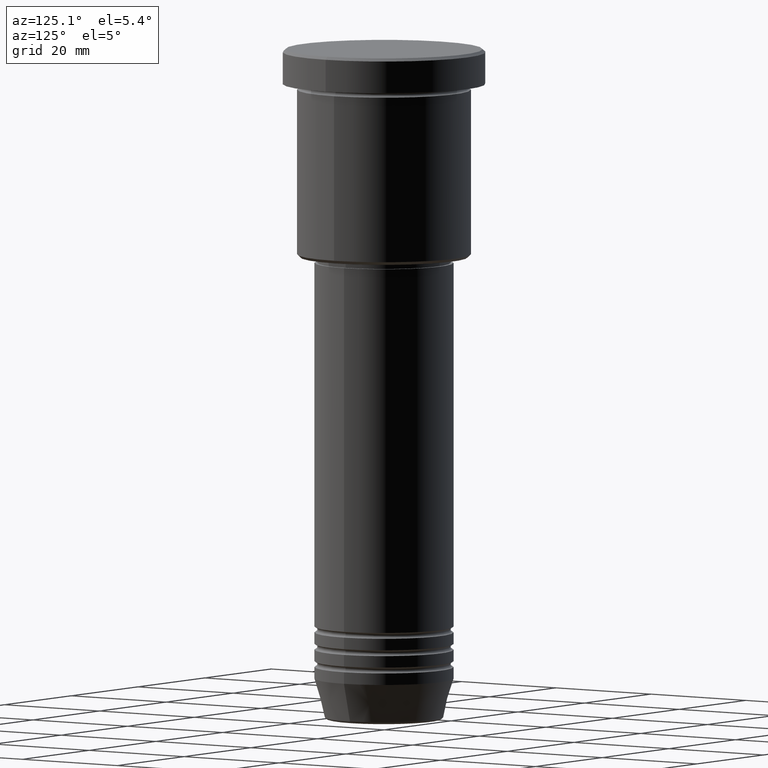
[diagram: clean part render]
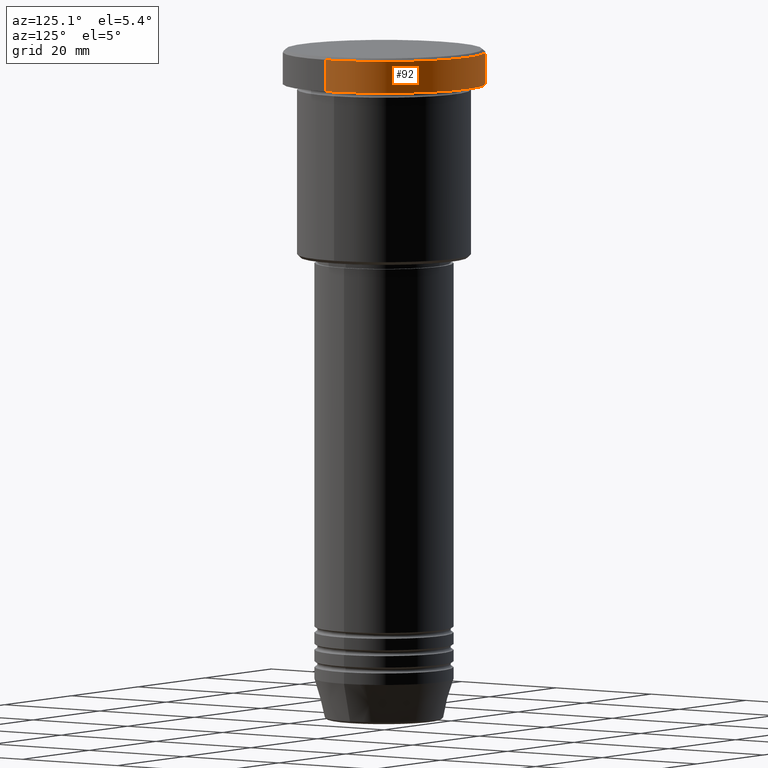
[diagram: same view with one face highlighted and labeled with its STEP entity id]
A machine part, auxiliary view. The second image highlights one B-rep face of the part: STEP entity #92.
In plain terms, the highlighted cylindrical surface (partial cylindrical patch) has radius 17.5 mm, axis along (-0, -0, 1).
Its self-contained STEP definition (entity closure, byte-faithful):
#4 = EDGE_CURVE ( 'NONE', #145, #392, #1073, .T. ) ;
#34 = ORIENTED_EDGE ( 'NONE', *, *, #752, .T. ) ;
#47 = LINE ( 'NONE', #415, #105 ) ;
#92 = ADVANCED_FACE ( 'NONE', ( #921 ), #654, .T. ) ;
#98 = DIRECTION ( 'NONE',  ( 1.000000000000000000, 0.000000000000000000, 0.000000000000000000 ) ) ;
#99 = DIRECTION ( 'NONE',  ( -0.000000000000000000, -0.000000000000000000, 1.000000000000000000 ) ) ;
#105 = VECTOR ( 'NONE', #671, 1000.000000000000000 ) ;
#145 = VERTEX_POINT ( 'NONE', #193 ) ;
#184 = CARTESIAN_POINT ( 'NONE',  ( 0.000000000000000000, 0.000000000000000000, -5.999999999999995559 ) ) ;
#193 = CARTESIAN_POINT ( 'NONE',  ( 17.50000000000000000, 0.000000000000000000, -5.999999999999995559 ) ) ;
#267 = AXIS2_PLACEMENT_3D ( 'NONE', #383, #99, #272 ) ;
#272 = DIRECTION ( 'NONE',  ( 1.000000000000000000, 0.000000000000000000, 0.000000000000000000 ) ) ;
#290 = CARTESIAN_POINT ( 'NONE',  ( -17.50000000000000000, 2.143131898507868248E-15, -0.5000000000000004441 ) ) ;
#375 = EDGE_LOOP ( 'NONE', ( #476, #34, #1118, #1035 ) ) ;
#383 = CARTESIAN_POINT ( 'NONE',  ( 0.000000000000000000, 0.000000000000000000, 0.000000000000000000 ) ) ;
#386 = CIRCLE ( 'NONE', #1040, 17.50000000000000000 ) ;
#392 = VERTEX_POINT ( 'NONE', #412 ) ;
#412 = CARTESIAN_POINT ( 'NONE',  ( 17.50000000000000000, 0.000000000000000000, -0.5000000000000004441 ) ) ;
#415 = CARTESIAN_POINT ( 'NONE',  ( -17.50000000000000000, 2.143131898507868248E-15, 0.000000000000000000 ) ) ;
#476 = ORIENTED_EDGE ( 'NONE', *, *, #659, .T. ) ;
#547 = DIRECTION ( 'NONE',  ( -0.000000000000000000, -0.000000000000000000, 1.000000000000000000 ) ) ;
#555 = AXIS2_PLACEMENT_3D ( 'NONE', #184, #547, #98 ) ;
#654 = CYLINDRICAL_SURFACE ( 'NONE', #267, 17.50000000000000000 ) ;
#659 = EDGE_CURVE ( 'NONE', #145, #1146, #1151, .T. ) ;
#671 = DIRECTION ( 'NONE',  ( -0.000000000000000000, -0.000000000000000000, 1.000000000000000000 ) ) ;
#685 = CARTESIAN_POINT ( 'NONE',  ( -17.50000000000000000, 2.143131898507868248E-15, -5.999999999999995559 ) ) ;
#731 = DIRECTION ( 'NONE',  ( 1.000000000000000000, 0.000000000000000000, 0.000000000000000000 ) ) ;
#752 = EDGE_CURVE ( 'NONE', #1146, #1019, #47, .T. ) ;
#921 = FACE_OUTER_BOUND ( 'NONE', #375, .T. ) ;
#1018 = DIRECTION ( 'NONE',  ( 0.000000000000000000, 0.000000000000000000, -1.000000000000000000 ) ) ;
#1019 = VERTEX_POINT ( 'NONE', #290 ) ;
#1035 = ORIENTED_EDGE ( 'NONE', *, *, #4, .F. ) ;
#1037 = EDGE_CURVE ( 'NONE', #1019, #392, #386, .T. ) ;
#1040 = AXIS2_PLACEMENT_3D ( 'NONE', #1104, #1018, #731 ) ;
#1073 = LINE ( 'NONE', #1155, #1083 ) ;
#1083 = VECTOR ( 'NONE', #1181, 1000.000000000000000 ) ;
#1104 = CARTESIAN_POINT ( 'NONE',  ( 0.000000000000000000, 0.000000000000000000, -0.5000000000000004441 ) ) ;
#1118 = ORIENTED_EDGE ( 'NONE', *, *, #1037, .T. ) ;
#1146 = VERTEX_POINT ( 'NONE', #685 ) ;
#1151 = CIRCLE ( 'NONE', #555, 17.50000000000000000 ) ;
#1155 = CARTESIAN_POINT ( 'NONE',  ( 17.50000000000000000, 0.000000000000000000, 0.000000000000000000 ) ) ;
#1181 = DIRECTION ( 'NONE',  ( -0.000000000000000000, -0.000000000000000000, 1.000000000000000000 ) ) ;